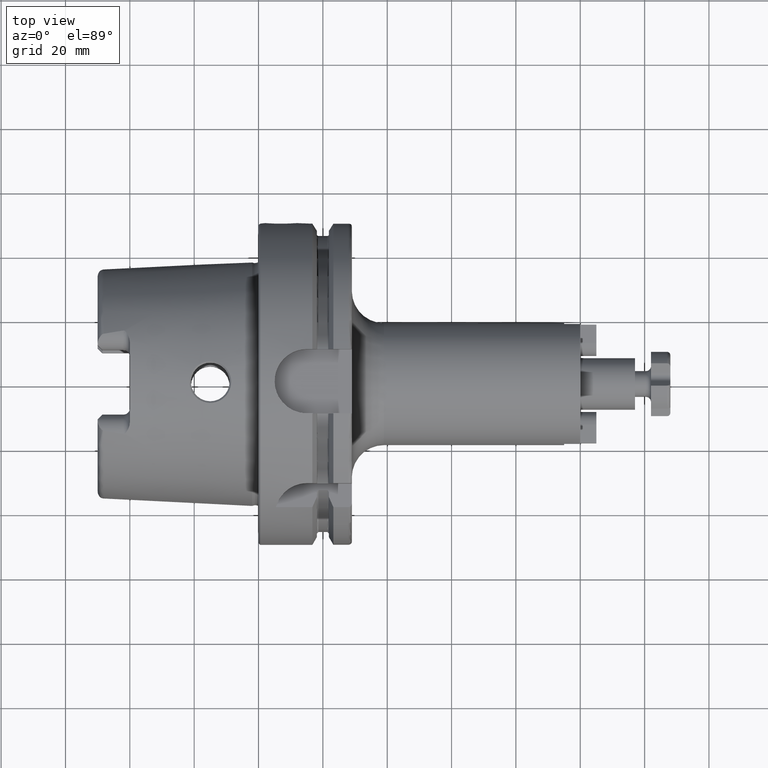
[diagram: clean part render]
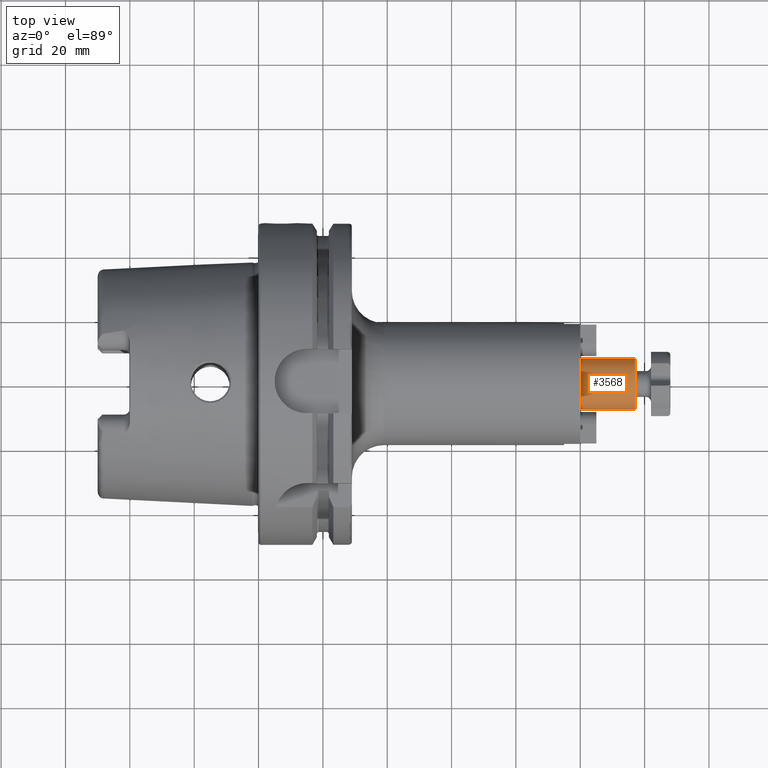
[diagram: same view with one face highlighted and labeled with its STEP entity id]
A machine part, top view. The second image highlights one B-rep face of the part: STEP entity #3568.
In plain terms, the highlighted cylindrical surface (bore or boss wall) has radius 8 mm, axis along (1, 0, 0).
Its self-contained STEP definition (entity closure, byte-faithful):
#778=CYLINDRICAL_SURFACE('',#3942,8.);
#849=FACE_OUTER_BOUND('',#1034,.T.);
#1034=EDGE_LOOP('',(#2707,#2708,#2709,#2710));
#1247=LINE('',#5614,#1437);
#1437=VECTOR('',#4505,8.);
#1619=CIRCLE('',#3941,8.);
#1620=CIRCLE('',#3943,8.00000000000001);
#1862=VERTEX_POINT('',#5609);
#1863=VERTEX_POINT('',#5612);
#2188=EDGE_CURVE('',#1862,#1862,#1619,.T.);
#2189=EDGE_CURVE('',#1863,#1863,#1620,.T.);
#2190=EDGE_CURVE('',#1863,#1862,#1247,.T.);
#2707=ORIENTED_EDGE('',*,*,#2189,.F.);
#2708=ORIENTED_EDGE('',*,*,#2190,.T.);
#2709=ORIENTED_EDGE('',*,*,#2188,.T.);
#2710=ORIENTED_EDGE('',*,*,#2190,.F.);
#3568=ADVANCED_FACE('',(#849),#778,.T.);
#3941=AXIS2_PLACEMENT_3D('',#5610,#4499,#4500);
#3942=AXIS2_PLACEMENT_3D('',#5611,#4501,#4502);
#3943=AXIS2_PLACEMENT_3D('',#5613,#4503,#4504);
#4499=DIRECTION('center_axis',(1.,0.,0.));
#4500=DIRECTION('ref_axis',(0.,0.,-1.));
#4501=DIRECTION('center_axis',(1.,0.,0.));
#4502=DIRECTION('ref_axis',(0.,1.,0.));
#4503=DIRECTION('center_axis',(1.,0.,0.));
#4504=DIRECTION('ref_axis',(0.,0.,-1.));
#4505=DIRECTION('',(-1.,0.,0.));
#5609=CARTESIAN_POINT('',(100.,-8.,-9.79717439317883E-16));
#5610=CARTESIAN_POINT('Origin',(100.,0.,0.));
#5611=CARTESIAN_POINT('Origin',(108.5,0.,0.));
#5612=CARTESIAN_POINT('',(117.,-8.,-9.79717439317883E-16));
#5613=CARTESIAN_POINT('Origin',(117.,0.,0.));
#5614=CARTESIAN_POINT('',(108.5,-8.,-9.79717439317883E-16));